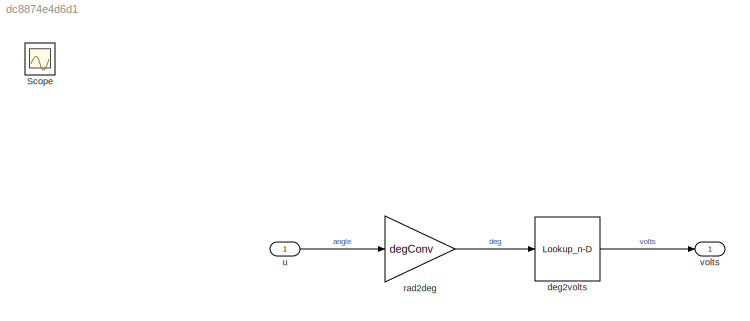
MODEL slx_dc8874e4d6d1
KIND model
CONFIG AbsTol = auto
CONFIG EnableMultiTasking = off
CONFIG FixedStep = auto
CONFIG MaxStep = auto
CONFIG MinStep = auto
CONFIG PreLoadFcn = t = linspace(0,10,101)';\nu = linspace(0,pi/2,101)';\ndegConv = 180/pi;\n
CONFIG RelTol = 1e-3
CONFIG SampleTimeConstraint = Unconstrained
CONFIG Solver = VariableStepAuto
CONFIG SolverName = VariableStepAuto
CONFIG StartTime = 0.0
CONFIG StopTime = 10
BLOCK [Scope] Scope
  IOType = viewer
  NumInputPorts = 1
  Ports = []
  ScopeSpecificationString = Simulink.scopes.TimeScopeBlockCfg('CurrentConfiguration', extmgr.ConfigurationSet(extmgr.Configuration('Core','General UI',true),extmgr.Configuration('Core','Source UI',true),extmgr.Configuration('Sources','WiredSimulink',true),extmgr.Configuration('Visuals','Time Domain',true,'SerializedDisplays',{struct('MinYLimReal','-0.5625','MaxYLimReal','5.0625','YLabelReal','','MinYLimMag','0.00000','MaxYLi...<+2700ch>
BLOCK [Lookup_n-D] deg2volts
  BreakpointsForDimension1 = [0 90]
  ExtrapMethod = Clip
  InternalRulePriority = Speed
  NumberOfTableDimensions = 1
  Ports = [1, 1]
  RndMeth = Simplest
  Table = [0.5 4.5]
  UseLastTableValue = on
BLOCK [Gain] rad2deg
  Gain = degConv
  OutDataTypeStr = Inherit: Inherit via internal rule
  ParamDataTypeStr = Inherit: Inherit via internal rule
  SaturateOnIntegerOverflow = off
BLOCK [Inport] u
  IconDisplay = Port number
BLOCK [Outport] volts
  IconDisplay = Port number
LINE deg2volts:1 -> volts:1
LINE rad2deg:1 -> deg2volts:1
LINE u:1 -> rad2deg:1
